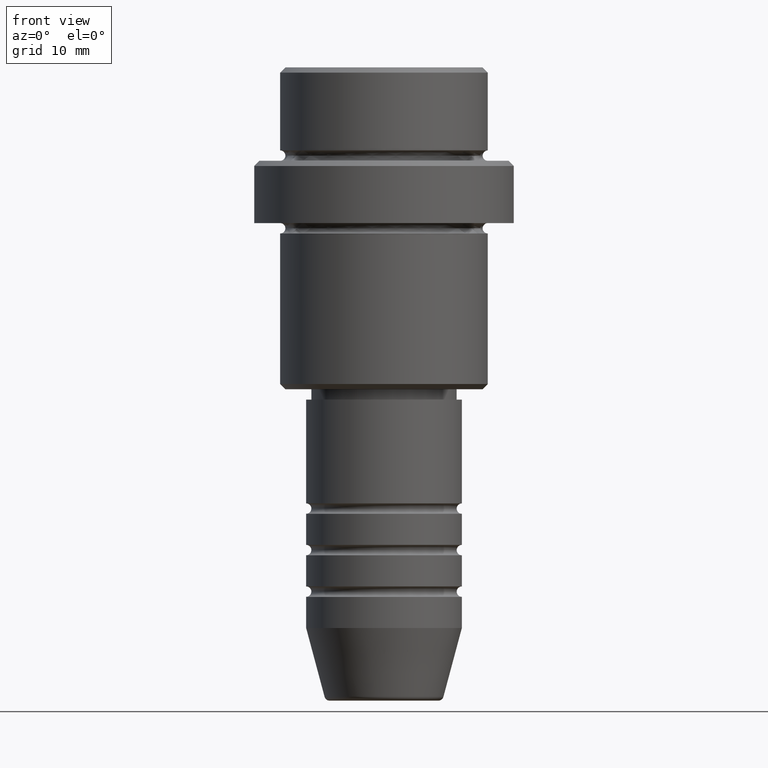
[diagram: clean part render]
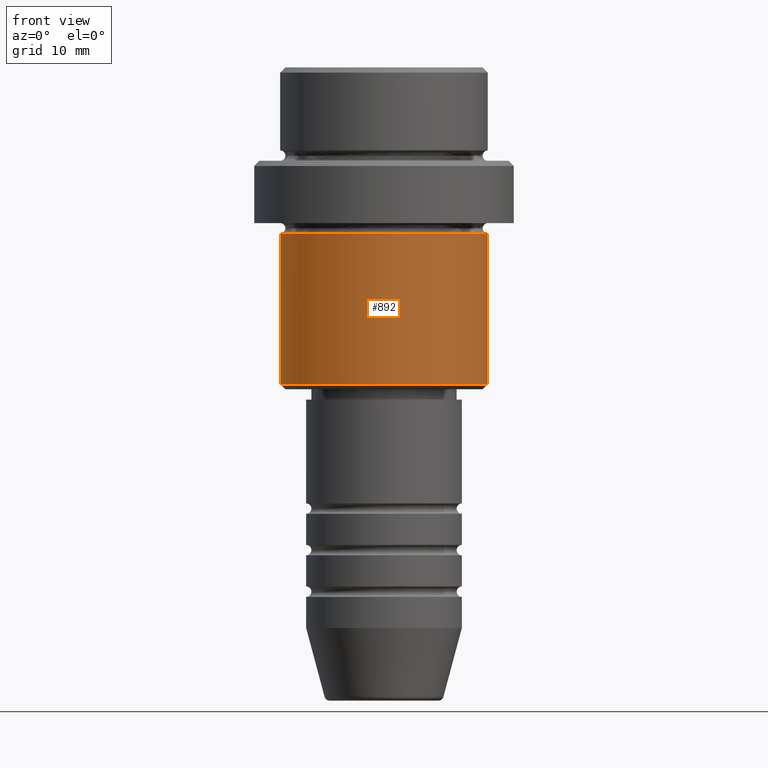
[diagram: same view with one face highlighted and labeled with its STEP entity id]
A machine part, front view. The second image highlights one B-rep face of the part: STEP entity #892.
In plain terms, the highlighted cylindrical surface (partial cylindrical patch) has radius 10 mm, axis along (-0, -0, 1).
Its self-contained STEP definition (entity closure, byte-faithful):
#84 = CIRCLE ( 'NONE', #1092, 9.999999999999998224 ) ;
#137 = AXIS2_PLACEMENT_3D ( 'NONE', #245, #260, #145 ) ;
#144 = VECTOR ( 'NONE', #1032, 1000.000000000000000 ) ;
#145 = DIRECTION ( 'NONE',  ( -1.000000000000000000, 0.000000000000000000, 0.000000000000000000 ) ) ;
#203 = VERTEX_POINT ( 'NONE', #264 ) ;
#228 = ORIENTED_EDGE ( 'NONE', *, *, #1046, .F. ) ;
#245 = CARTESIAN_POINT ( 'NONE',  ( 0.000000000000000000, 0.000000000000000000, -30.49999999999998934 ) ) ;
#256 = DIRECTION ( 'NONE',  ( -0.000000000000000000, -0.000000000000000000, 1.000000000000000000 ) ) ;
#260 = DIRECTION ( 'NONE',  ( -0.000000000000000000, -0.000000000000000000, 1.000000000000000000 ) ) ;
#264 = CARTESIAN_POINT ( 'NONE',  ( 9.999999999999998224, 0.000000000000000000, -16.00000000000000000 ) ) ;
#295 = EDGE_LOOP ( 'NONE', ( #1131, #873, #712, #228 ) ) ;
#298 = VECTOR ( 'NONE', #1392, 1000.000000000000000 ) ;
#349 = DIRECTION ( 'NONE',  ( 1.000000000000000000, 0.000000000000000000, 0.000000000000000000 ) ) ;
#411 = CIRCLE ( 'NONE', #137, 9.999999999999998224 ) ;
#472 = FACE_OUTER_BOUND ( 'NONE', #295, .T. ) ;
#507 = DIRECTION ( 'NONE',  ( -0.000000000000000000, -0.000000000000000000, 1.000000000000000000 ) ) ;
#563 = EDGE_CURVE ( 'NONE', #1054, #203, #736, .T. ) ;
#577 = CARTESIAN_POINT ( 'NONE',  ( 0.000000000000000000, 0.000000000000000000, 0.000000000000000000 ) ) ;
#601 = CARTESIAN_POINT ( 'NONE',  ( -9.999999999999998224, 1.224646799147353059E-15, 0.000000000000000000 ) ) ;
#617 = CARTESIAN_POINT ( 'NONE',  ( 9.999999999999998224, 0.000000000000000000, -30.49999999999998934 ) ) ;
#627 = EDGE_CURVE ( 'NONE', #809, #998, #1281, .T. ) ;
#712 = ORIENTED_EDGE ( 'NONE', *, *, #563, .T. ) ;
#736 = LINE ( 'NONE', #863, #144 ) ;
#809 = VERTEX_POINT ( 'NONE', #1328 ) ;
#863 = CARTESIAN_POINT ( 'NONE',  ( 9.999999999999998224, 0.000000000000000000, 0.000000000000000000 ) ) ;
#873 = ORIENTED_EDGE ( 'NONE', *, *, #1258, .T. ) ;
#892 = ADVANCED_FACE ( 'NONE', ( #472 ), #1325, .T. ) ;
#998 = VERTEX_POINT ( 'NONE', #1066 ) ;
#1032 = DIRECTION ( 'NONE',  ( -0.000000000000000000, -0.000000000000000000, 1.000000000000000000 ) ) ;
#1046 = EDGE_CURVE ( 'NONE', #998, #203, #84, .T. ) ;
#1054 = VERTEX_POINT ( 'NONE', #617 ) ;
#1066 = CARTESIAN_POINT ( 'NONE',  ( -9.999999999999998224, 1.224646799147353059E-15, -16.00000000000000000 ) ) ;
#1092 = AXIS2_PLACEMENT_3D ( 'NONE', #1379, #507, #1365 ) ;
#1131 = ORIENTED_EDGE ( 'NONE', *, *, #627, .F. ) ;
#1258 = EDGE_CURVE ( 'NONE', #809, #1054, #411, .T. ) ;
#1281 = LINE ( 'NONE', #601, #298 ) ;
#1325 = CYLINDRICAL_SURFACE ( 'NONE', #1343, 9.999999999999998224 ) ;
#1328 = CARTESIAN_POINT ( 'NONE',  ( -9.999999999999998224, 1.224646799147353059E-15, -30.49999999999998934 ) ) ;
#1343 = AXIS2_PLACEMENT_3D ( 'NONE', #577, #256, #349 ) ;
#1365 = DIRECTION ( 'NONE',  ( 1.000000000000000000, 0.000000000000000000, 0.000000000000000000 ) ) ;
#1379 = CARTESIAN_POINT ( 'NONE',  ( 0.000000000000000000, 0.000000000000000000, -16.00000000000000000 ) ) ;
#1392 = DIRECTION ( 'NONE',  ( -0.000000000000000000, -0.000000000000000000, 1.000000000000000000 ) ) ;